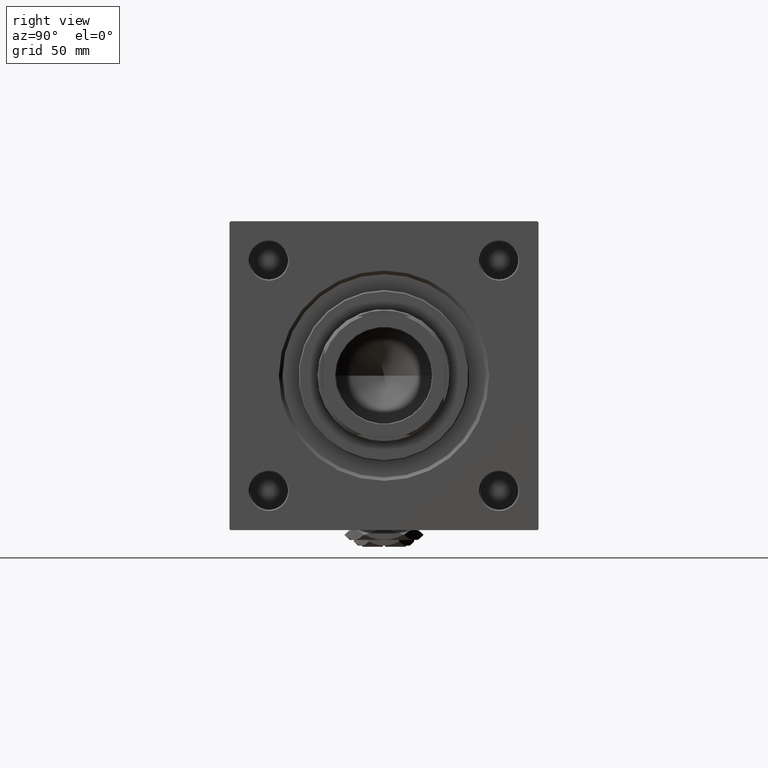
[diagram: clean part render]
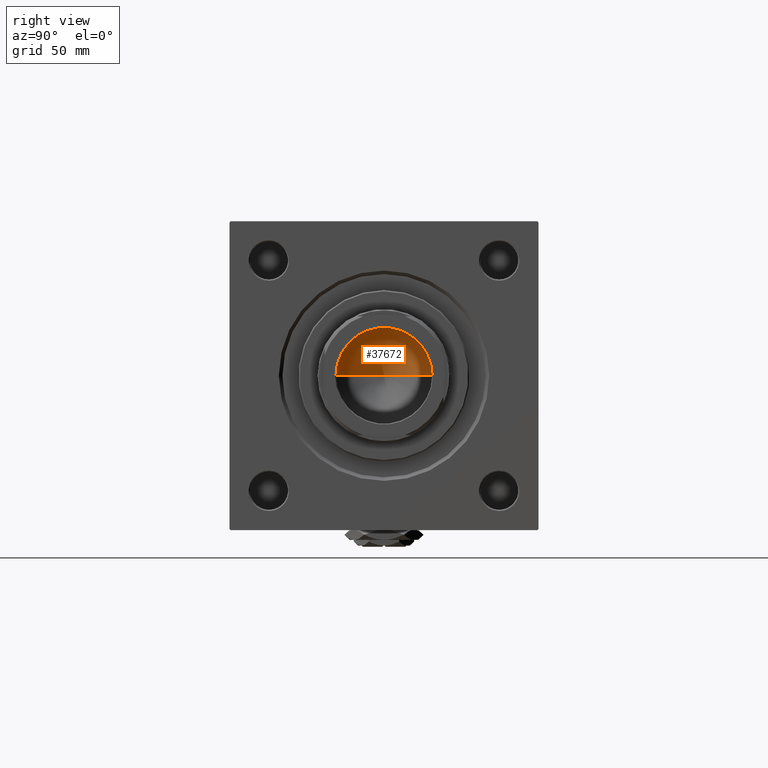
[diagram: same view with one face highlighted and labeled with its STEP entity id]
A machine part, right view. The second image highlights one B-rep face of the part: STEP entity #37672.
In plain terms, the highlighted conical surface has half-angle 59 deg.
Its self-contained STEP definition (entity closure, byte-faithful):
#1217 = FACE_OUTER_BOUND ( 'NONE', #1914, .T. ) ;
#1914 = EDGE_LOOP ( 'NONE', ( #27533, #35749, #31229 ) ) ;
#5372 = DIRECTION ( 'NONE',  ( -0.000000000000000000, -0.000000000000000000, 1.000000000000000000 ) ) ;
#5424 = VERTEX_POINT ( 'NONE', #45151 ) ;
#9537 = VECTOR ( 'NONE', #31069, 1000.000000000000000 ) ;
#11341 = LINE ( 'NONE', #34939, #48151 ) ;
#12995 = VERTEX_POINT ( 'NONE', #26809 ) ;
#14877 = EDGE_CURVE ( 'NONE', #39172, #5424, #27353, .T. ) ;
#18467 = DIRECTION ( 'NONE',  ( -0.000000000000000000, -0.000000000000000000, 1.000000000000000000 ) ) ;
#22427 = CARTESIAN_POINT ( 'NONE',  ( 0.000000000000000000, 0.000000000000000000, 117.0000000000000142 ) ) ;
#26809 = CARTESIAN_POINT ( 'NONE',  ( 20.24999999999998934, 0.000000000000000000, 117.0000000000000142 ) ) ;
#27353 = LINE ( 'NONE', #35565, #9537 ) ;
#27533 = ORIENTED_EDGE ( 'NONE', *, *, #32950, .F. ) ;
#27865 = AXIS2_PLACEMENT_3D ( 'NONE', #22427, #18467, #29872 ) ;
#28934 = EDGE_CURVE ( 'NONE', #5424, #12995, #49718, .T. ) ;
#29400 = AXIS2_PLACEMENT_3D ( 'NONE', #38514, #5372, #29796 ) ;
#29796 = DIRECTION ( 'NONE',  ( 1.000000000000000000, 0.000000000000000000, 0.000000000000000000 ) ) ;
#29872 = DIRECTION ( 'NONE',  ( 1.000000000000000000, 0.000000000000000000, 0.000000000000000000 ) ) ;
#31069 = DIRECTION ( 'NONE',  ( -0.8571673007021115565, 1.049727191138617710E-16, 0.5150380749100554878 ) ) ;
#31229 = ORIENTED_EDGE ( 'NONE', *, *, #28934, .T. ) ;
#32950 = EDGE_CURVE ( 'NONE', #39172, #12995, #11341, .T. ) ;
#34939 = CARTESIAN_POINT ( 'NONE',  ( 20.24999999999998934, 0.000000000000000000, 117.0000000000000142 ) ) ;
#35194 = DIRECTION ( 'NONE',  ( 0.8571673007021115565, 0.000000000000000000, 0.5150380749100554878 ) ) ;
#35565 = CARTESIAN_POINT ( 'NONE',  ( -20.24999999999998934, 2.479909768273389117E-15, 117.0000000000000142 ) ) ;
#35749 = ORIENTED_EDGE ( 'NONE', *, *, #14877, .T. ) ;
#37672 = ADVANCED_FACE ( 'NONE', ( #1217 ), #52424, .F. ) ;
#38480 = CARTESIAN_POINT ( 'NONE',  ( -1.584115414415908206E-14, 0.000000000000000000, 104.8325724646918928 ) ) ;
#38514 = CARTESIAN_POINT ( 'NONE',  ( 0.000000000000000000, 0.000000000000000000, 117.0000000000000142 ) ) ;
#39172 = VERTEX_POINT ( 'NONE', #38480 ) ;
#45151 = CARTESIAN_POINT ( 'NONE',  ( -20.24999999999998934, 2.479909768273389117E-15, 117.0000000000000142 ) ) ;
#48151 = VECTOR ( 'NONE', #35194, 1000.000000000000000 ) ;
#49718 = CIRCLE ( 'NONE', #29400, 20.24999999999998934 ) ;
#52424 = CONICAL_SURFACE ( 'NONE', #27865, 20.24999999999998934, 1.029744258676652979 ) ;